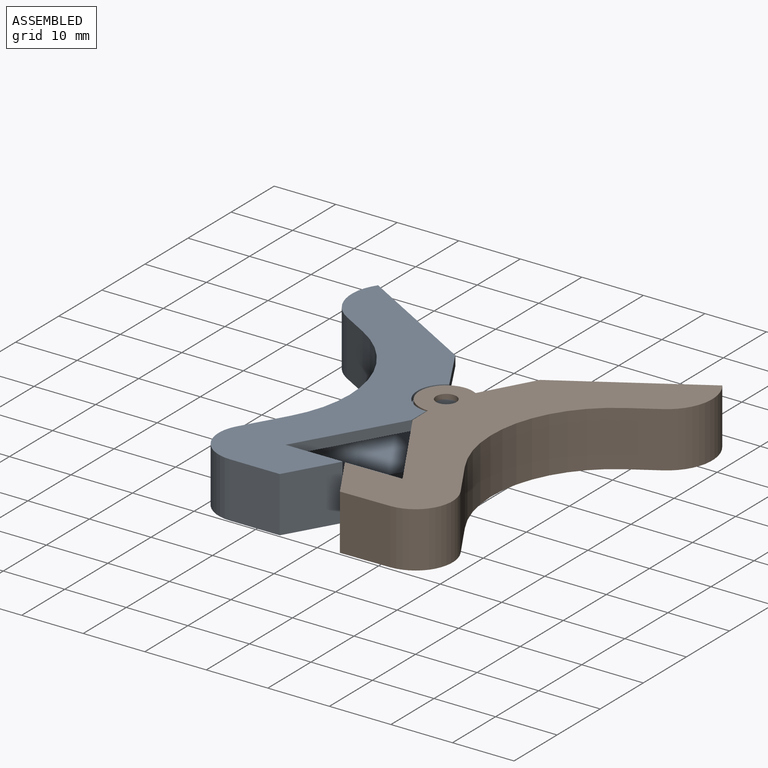
[diagram: assembled view]
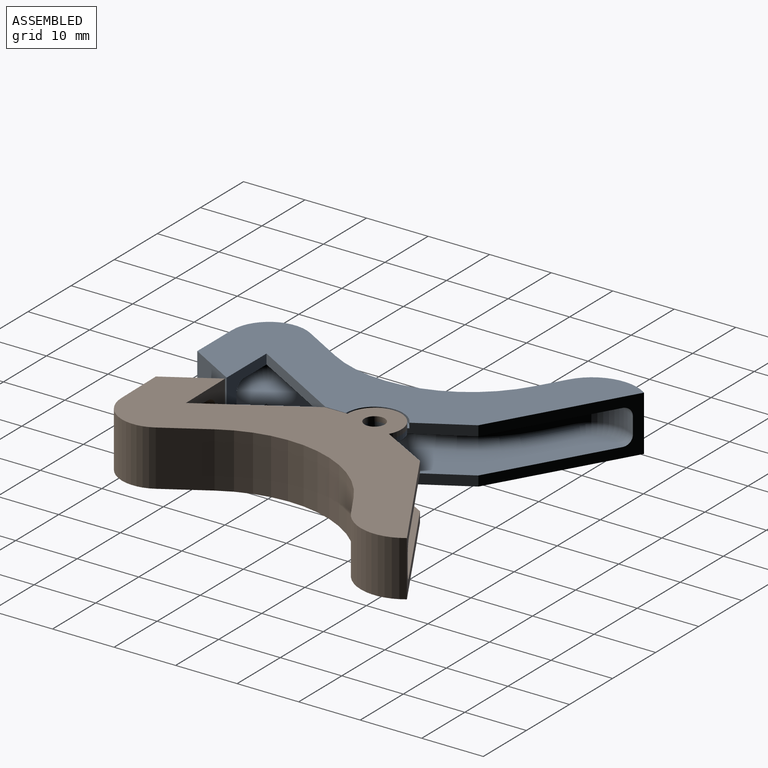
[diagram: assembled view, second angle]
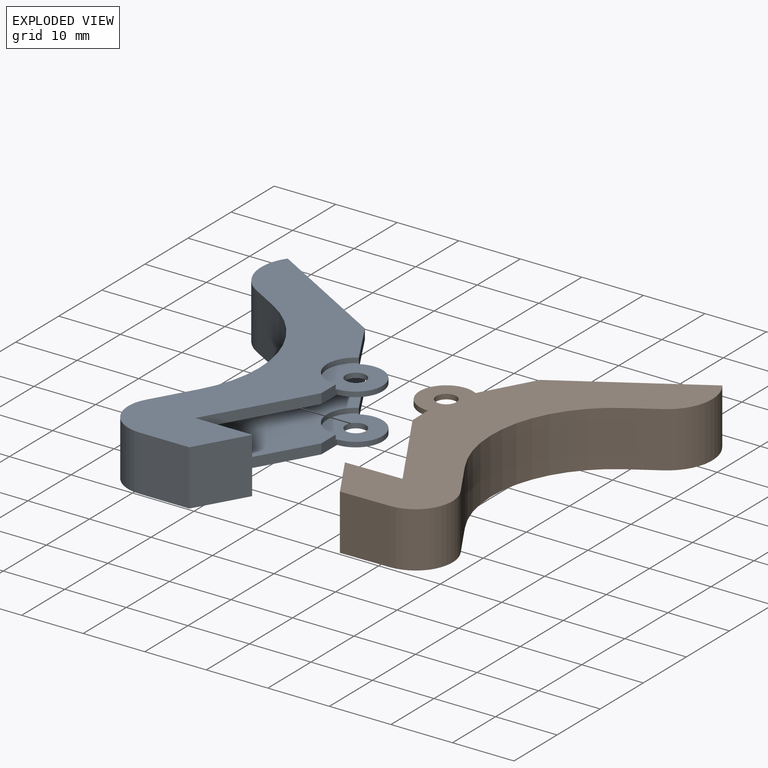
[diagram: exploded view]
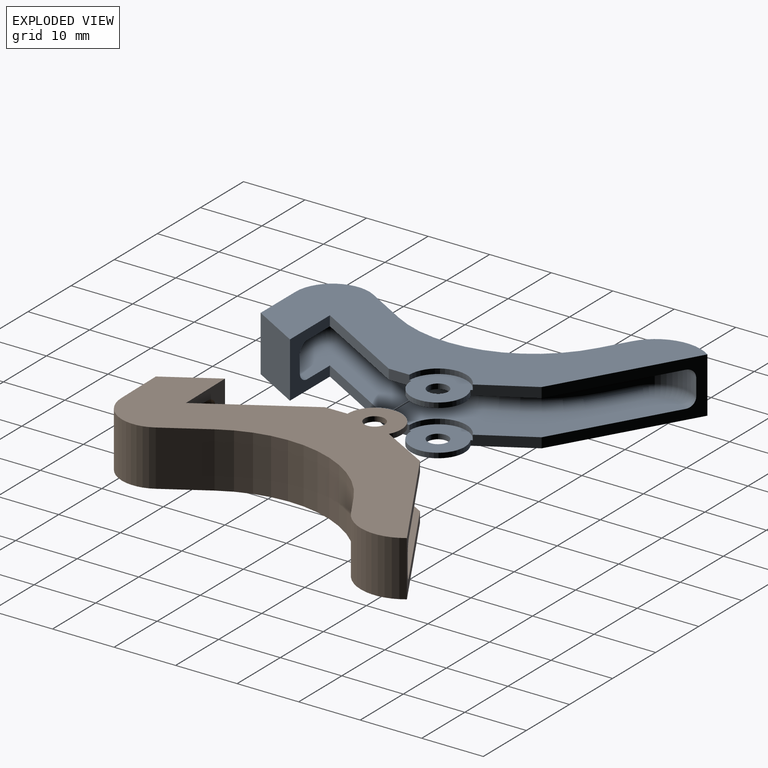
[diagram: exploded view, second angle]
ASSEMBLY  parts=2 mates=2
PART A: 51 faces, bbox 33.7x56.2x9 mm
  f0: plane 51.52x26.21mm, normal (0,0,-1), area 369.3mm2, adj f2,f8,f9,f25,f26,f27,f28,f29
  f1: plane 56.22x29.33mm, normal (0,0,-1), area 622.7mm2, adj f2,f6,f7,f9,f10,f11,f12,f13
  f2: plane 21.07x12.17mm, normal (-0.5,0.87,0), area 89.4mm2, adj f0,f1,f3,f4,f16,f22,f25,f35
  f3: plane 56.22x33.68mm, normal (0,0,1), area 677.1mm2, adj f2,f6,f8,f9,f10,f11,f12,f13
  f4: plane 51.52x30.56mm, normal (0,0,1), area 423.7mm2, adj f2,f5,f7,f9,f33,f35,f37,f38
  f5: cylinder r=1.65mm len=3.3mm, axis (0,0,-1), area 8.4mm2, adj f4,f46
  f6: plane 9x8mm, normal (-0.87,-0.5,0), area 83.1mm2, adj f1,f3,f9,f10
  f7: plane 16.06x9.27mm, normal (-0.87,-0.5,0), area 30.1mm2, adj f1,f4,f9,f33
  f8: plane 16.06x9.27mm, normal (-0.87,-0.5,0), area 30.1mm2, adj f0,f3,f9,f34
  f9: plane 9.27x9mm, normal (0,1,0), area 44.5mm2, adj f0,f1,f3,f4,f6,f7,f8,f23
  f10: plane 9x8.12mm, normal (0,-1,0), area 73mm2, adj f1,f3,f6,f11
  f11: cylinder r=6mm len=9mm, axis (0,0,-1), area 113.1mm2, adj f1,f3,f10,f12
  f12: plane 9x6.81mm, normal (0.87,0.5,0), area 70.7mm2, adj f1,f3,f11,f13
  f13: cylinder r=20mm len=27.32mm, axis (0,0,-1), area 282.7mm2, adj f1,f3,f12,f14
  f14: plane 9x4.33mm, normal (0.5,-0.87,0), area 45mm2, adj f1,f3,f13,f16
  f15: cylinder r=1.65mm len=3.3mm, axis (0,0,-1), area 8.4mm2, adj f3,f48
  f16: cylinder r=7.36mm len=10.59mm, axis (0,0,-1), area 109.8mm2, adj f1,f2,f3,f14
  f17: plane 5.59x2.75mm, normal (0,1,0), area 15.4mm2, adj f18,f24,f30,f42
  f18: cylinder r=4.38mm len=6.56mm, axis (0,0,-1), area 25.2mm2, adj f17,f19,f29,f41
  f19: plane 6.81x3.93mm, normal (-0.87,-0.5,0), area 21.6mm2, adj f18,f20,f28,f40
  f20: cylinder r=21.62mm len=29.54mm, axis (0,0,-1), area 93.4mm2, adj f19,f21,f27,f39
  f21: plane 4.33x2.75mm, normal (-0.5,0.87,0), area 13.7mm2, adj f20,f22,f26,f38
  f22: cylinder r=5.73mm len=8.37mm, axis (0,0,-1), area 26.5mm2, adj f2,f21,f25,f37
  f23: plane 5.38x3.1mm, normal (0.87,0.5,0), area 17.1mm2, adj f9,f24,f32,f44
  f24: cylinder r=2mm len=2.75mm, axis (0,0,1), area 5.8mm2, adj f17,f23,f31,f43
  f25: torus R=4.23mm, axis (0,0,1), area 20.7mm2, adj f0,f2,f22,f26
  f26: cylinder r=1.5mm len=5.08mm, axis (0.87,0.5,0), area 11.8mm2, adj f0,f21,f25,f27
  f27: torus R=23.12mm, axis (0,0,1), area 82.1mm2, adj f0,f20,f26,f28
  f28: cylinder r=1.5mm len=7.56mm, axis (-0.5,0.87,0), area 18.5mm2, adj f0,f19,f27,f29
  f29: torus R=2.88mm, axis (0,0,1), area 18.9mm2, adj f0,f18,f28,f30
  f30: cylinder r=1.5mm len=5.59mm, axis (1,0,0), area 13.2mm2, adj f0,f17,f29,f31
  f31: torus R=0.5mm, axis (0,0,1), area 3.6mm2, adj f0,f24,f30,f32
  f32: cylinder r=1.5mm len=6.13mm, axis (-0.5,0.87,0), area 13.9mm2, adj f0,f9,f23,f31
  f33: plane 3.65x1.63mm, normal (-1,0,0), area 5.7mm2, adj f1,f4,f7,f45,f46,f50
  f34: plane 3.65x1.63mm, normal (-1,0,0), area 5.7mm2, adj f0,f3,f8,f47,f48,f49
  f35: plane 8.23x4.75mm, normal (-0.87,0.5,0), area 15.2mm2, adj f1,f2,f4,f45,f46,f50
  f36: plane 8.23x4.75mm, normal (-0.87,0.5,0), area 15.2mm2, adj f0,f2,f3,f47,f48,f49
  f37: torus R=4.23mm, axis (0,0,1), area 20.7mm2, adj f2,f4,f22,f38
  f38: cylinder r=1.5mm len=5.08mm, axis (-0.87,-0.5,0), area 11.8mm2, adj f4,f21,f37,f39
  f39: torus R=23.12mm, axis (0,0,1), area 82.1mm2, adj f4,f20,f38,f40
  f40: cylinder r=1.5mm len=7.56mm, axis (0.5,-0.87,0), area 18.5mm2, adj f4,f19,f39,f41
  f41: torus R=2.88mm, axis (0,0,1), area 18.9mm2, adj f4,f18,f40,f42
  f42: cylinder r=1.5mm len=5.59mm, axis (-1,0,0), area 13.2mm2, adj f4,f17,f41,f43
  f43: torus R=0.5mm, axis (0,0,1), area 3.6mm2, adj f4,f24,f42,f44
  f44: cylinder r=1.5mm len=6.13mm, axis (0.5,-0.87,0), area 13.9mm2, adj f4,f9,f23,f43
  f45: cylinder r=4.65mm len=8.68mm, axis (0,0,-1), area 9.9mm2, adj f1,f33,f35,f46
  f46: plane 9x9mm, normal (0,0,-1), area 54.4mm2, adj f5,f33,f35,f45,f50
  f47: cylinder r=4.65mm len=8.68mm, axis (0,0,-1), area 9.9mm2, adj f0,f34,f36,f48
  f48: plane 9x9mm, normal (0,0,-1), area 54.4mm2, adj f15,f34,f36,f47,f49
  f49: cylinder r=4.35mm len=8.7mm, axis (0,0,1), area 13mm2, adj f3,f34,f36,f48
  f50: cylinder r=4.35mm len=8.7mm, axis (0,0,1), area 13mm2, adj f4,f33,f35,f46
PART B: same geometry as A
PLACE A rot(axis=(0,1,0),180deg) t=(-0.17,-17.13,6.73)mm fixed
PLACE B rot(axis=(0,0,1),0.9deg) t=(0.1,-17.13,-2.27)mm
MATE cylindrical A.f5 <-> B.f5  axis (0,0,-1) through (-0.17,0.22,-2.27)mm
MATE planar A.f1 <-> B.f3  axis (0,0,1) through (-21.49,11.29,6.73)mm
